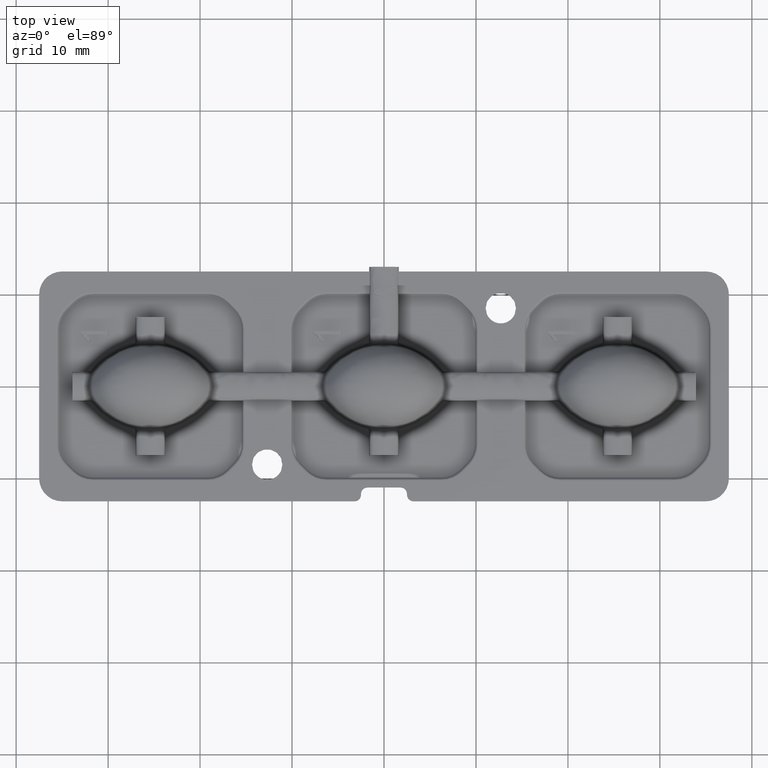
[diagram: clean part render]
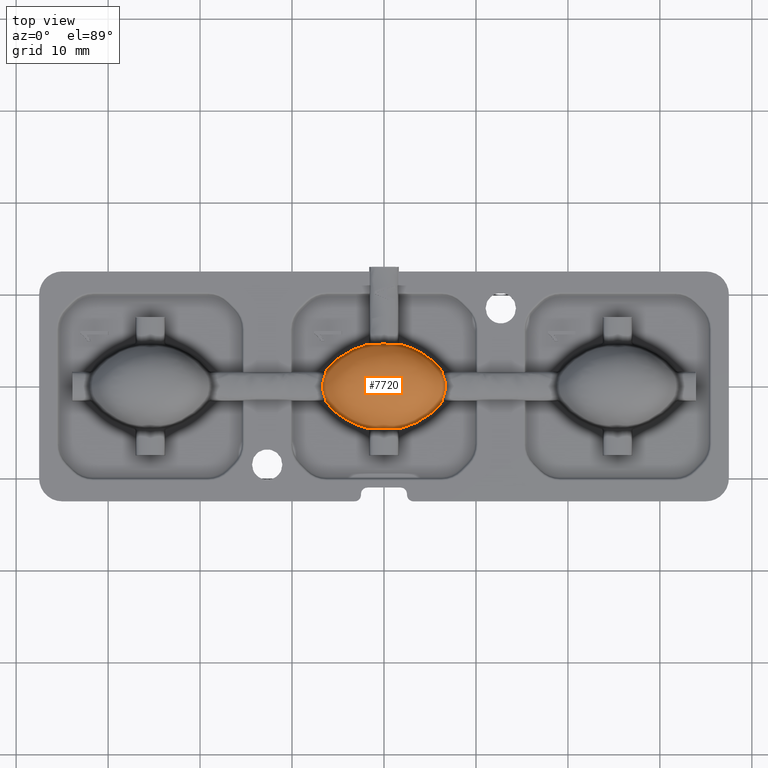
[diagram: same view with one face highlighted and labeled with its STEP entity id]
A machine part, top view. The second image highlights one B-rep face of the part: STEP entity #7720.
In plain terms, the highlighted face is a freeform B-spline surface patch.
Its self-contained STEP definition (entity closure, byte-faithful):
#48 = CARTESIAN_POINT ( 'NONE',  ( -4.290715966508043900, -2.774977043889248000, 4.899085278123263400 ) ) ;
#109 = CARTESIAN_POINT ( 'NONE',  ( -6.595367095708966500, -1.067414431001360200, 2.002142439754583100 ) ) ;
#160 = CARTESIAN_POINT ( 'NONE',  ( -7.149999999999996800, 0.3921826513172495000, 0.7000000000000000700 ) ) ;
#199 = CARTESIAN_POINT ( 'NONE',  ( 0.6654956143918615600, 4.572605465096015300, 2.121198574810695600 ) ) ;
#217 = CARTESIAN_POINT ( 'NONE',  ( 5.412768309494088800, 2.963205368882867200, 0.7000000000000000700 ) ) ;
#236 = EDGE_CURVE ( 'NONE', #14171, #12519, #14984, .T. ) ;
#238 = CARTESIAN_POINT ( 'NONE',  ( -6.660649341895565500, 0.3246350075704794700, 2.133466645938674400 ) ) ;
#255 = CARTESIAN_POINT ( 'NONE',  ( -1.688496123736301900, 4.530771309921590300, 1.638602403055297000 ) ) ;
#272 = CARTESIAN_POINT ( 'NONE',  ( 2.915339899021013500, 4.133131932776851000, 1.701016035214077700 ) ) ;
#332 = CARTESIAN_POINT ( 'NONE',  ( 0.5050017421716935800, 4.766775499048923900, 1.640737770873085300 ) ) ;
#386 = VERTEX_POINT ( 'NONE', #13800 ) ;
#395 = CARTESIAN_POINT ( 'NONE',  ( 6.938893903907228400E-015, 4.999999999999986700, 0.7000000000000000700 ) ) ;
#415 = CARTESIAN_POINT ( 'NONE',  ( 5.070618142720174900, 2.996358752434780100, 1.387135772169884000 ) ) ;
#523 = CARTESIAN_POINT ( 'NONE',  ( 1.749398461971673400, -4.576355337311180300, 1.417381862252350200 ) ) ;
#549 = CARTESIAN_POINT ( 'NONE',  ( 5.064352978633558600, -3.001296862853913600, 1.387149818517435600 ) ) ;
#564 = ORIENTED_EDGE ( 'NONE', *, *, #7376, .T. ) ;
#684 = CARTESIAN_POINT ( 'NONE',  ( 6.601493119740585100, -0.6427101006719259100, 2.099522563110465300 ) ) ;
#747 = CARTESIAN_POINT ( 'NONE',  ( 6.324719791588134600, 1.659400492682334200, 1.473931009564402300 ) ) ;
#828 = CARTESIAN_POINT ( 'NONE',  ( -2.206114765970292000, 4.468967724444484100, 1.386435487606687800 ) ) ;
#888 = CARTESIAN_POINT ( 'NONE',  ( -5.757316545885742300, 2.392121737182218300, 1.385093045938090400 ) ) ;
#909 = EDGE_CURVE ( 'NONE', #14121, #8118, #6334, .T. ) ;
#1059 = CARTESIAN_POINT ( 'NONE',  ( -1.586637196051814000, -4.517661033080703900, 1.771178540185564400 ) ) ;
#1117 = CARTESIAN_POINT ( 'NONE',  ( 0.8293503684184273500, -4.561129281262794600, 2.095933404689285700 ) ) ;
#1147 = CARTESIAN_POINT ( 'NONE',  ( -2.642466879972825000, -4.321490308572074400, 1.386978509085057700 ) ) ;
#1245 = CARTESIAN_POINT ( 'NONE',  ( 6.938893903907228400E-015, -5.000000000000013300, 0.7000000000000000700 ) ) ;
#1303 = CARTESIAN_POINT ( 'NONE',  ( -0.5050017463929003000, -4.766775504404596300, 1.640737745379796700 ) ) ;
#1330 = ORIENTED_EDGE ( 'NONE', *, *, #9439, .T. ) ;
#1357 = CARTESIAN_POINT ( 'NONE',  ( -2.915339923262014700, -4.133131935653496600, 1.701016005668017700 ) ) ;
#1409 = CARTESIAN_POINT ( 'NONE',  ( -5.412768346637751200, -2.963205337058307400, 0.7000000000000000700 ) ) ;
#1468 = CARTESIAN_POINT ( 'NONE',  ( 7.150000000000010100, -0.3921826448971799700, 0.7000000000000000700 ) ) ;
#1523 = CARTESIAN_POINT ( 'NONE',  ( 6.595367088537584800, 1.067414437906764000, 2.002142442199470000 ) ) ;
#1562 = CARTESIAN_POINT ( 'NONE',  ( 0.1672719782673925400, 4.591699679565089700, 2.161825673963400500 ) ) ;
#1580 = CARTESIAN_POINT ( 'NONE',  ( 4.290715954133231600, 2.774976996087564100, 4.899085324289795400 ) ) ;
#1599 = CARTESIAN_POINT ( 'NONE',  ( -6.677739851114551200, -0.1614347077318900300, 2.141522451979025900 ) ) ;
#1622 = CARTESIAN_POINT ( 'NONE',  ( -1.738451389440558200, 4.562065726538076400, 1.479700766335215300 ) ) ;
#1640 = CARTESIAN_POINT ( 'NONE',  ( -2.269404213826237400, 4.055426538387129300, 3.443968881844440900 ) ) ;
#1668 = B_SPLINE_SURFACE_WITH_KNOTS ( 'NONE', 3, 3, ( 
 ( #6611, #17406, #1245, #10674, #2620, #12037 ),
 ( #3958, #13391, #5315, #14755, #6669, #16109 ),
 ( #8028, #17464, #9393, #1303, #10736, #2678 ),
 ( #12096, #4017, #13441, #5360, #14809, #6725 ),
 ( #16164, #8084, #17525, #9443, #1357, #10791 ),
 ( #2733, #12152, #4069, #13496, #5418, #14860 ),
 ( #6778, #16215, #8139, #48, #9504, #1409 ),
 ( #10840, #2788, #12204, #4126, #13554, #5474 ),
 ( #14916, #6825, #16270, #8194, #109, #9554 ),
 ( #1468, #10901, #2843, #12257, #4182, #13608 ),
 ( #5531, #14976, #6883, #16327, #8252, #160 ),
 ( #9612, #1523, #10957, #2901, #12309, #4233 ),
 ( #13667, #5589, #15035, #6943, #16389, #8306 ),
 ( #217, #9673, #1580, #11015, #2961, #12370 ),
 ( #4286, #13725, #5650, #15096, #7002, #16448 ),
 ( #8367, #272, #9733, #1640, #11074, #3015 ),
 ( #12424, #4343, #13781, #5707, #15150, #7058 ),
 ( #16508, #8436, #332, #9788, #1703, #11138 ),
 ( #3072, #12483, #4401, #13838, #5758, #15207 ),
 ( #7117, #16563, #8491, #395, #9848, #1760 ) ),
 .UNSPECIFIED., .F., .F., .F.,
 ( 4, 1, 1, 1, 1, 1, 1, 1, 2, 1, 1, 1, 1, 1, 1, 1, 4 ),
 ( 4, 2, 4 ),
 ( 0.0000000000000000000, 0.06249999917855408900, 0.1249999983571081800, 0.1874999975356623500, 0.2499999967142163500, 0.3124999958927705000, 0.3749999950713247000, 0.4374999942498787900, 0.4999999934284327700, 0.5624999942498786200, 0.6249999950713246400, 0.6874999958927704400, 0.7499999967142163500, 0.8124999975356623800, 0.8749999983571081800, 0.9374999991785539800, 1.000000000000000000 ),
 ( 0.0000000000000000000, 0.5000000000047545300, 1.000000000000000000 ),
 .UNSPECIFIED. ) ;
#1703 = CARTESIAN_POINT ( 'NONE',  ( -0.8476577983524379300, 4.846671131088753800, 1.133272044865876800 ) ) ;
#1711 = ORIENTED_EDGE ( 'NONE', *, *, #15299, .T. ) ;
#1715 = CARTESIAN_POINT ( 'NONE',  ( 1.738451414722012300, 4.562066050238321700, 1.479700853122717800 ) ) ;
#1760 = CARTESIAN_POINT ( 'NONE',  ( 6.938893903907228400E-015, 4.999999999999985800, 0.7000000000000000700 ) ) ;
#1781 = CARTESIAN_POINT ( 'NONE',  ( 3.906711559148894800, 3.751654608718248100, 1.388087966596569700 ) ) ;
#1894 = VERTEX_POINT ( 'NONE', #10417 ) ;
#1932 = CARTESIAN_POINT ( 'NONE',  ( 6.075217602667661000, -2.057375310218552100, 1.383816536486075500 ) ) ;
#1943 = VERTEX_POINT ( 'NONE', #7814 ) ;
#2031 = B_SPLINE_CURVE_WITH_KNOTS ( 'NONE', 3,
 ( #5549, #10976, #2924, #12335, #4253, #13686, #5609, #15055, #6964, #16410, #8330, #238, #9694, #1599, #11034, #2984, #12392, #4309, #13749, #5670, #15115, #7019, #16470, #8390 ),
 .UNSPECIFIED., .F., .F.,
 ( 4, 2, 2, 2, 2, 2, 2, 2, 2, 2, 2, 4 ),
 ( 0.0000000000000000000, 0.0002482781213541509500, 0.0004965562427083019100, 0.0007448343640624529200, 0.0009931124854166036000, 0.001489668728124904800, 0.001986224970833206300, 0.002482781213541507700, 0.002979337456249808600, 0.003475893698958110000, 0.003724171820312260000, 0.003972449941666410900 ),
 .UNSPECIFIED. ) ;
#2069 = CARTESIAN_POINT ( 'NONE',  ( 6.677566692147401300, -0.1639384753831527000, 2.141438152756980800 ) ) ;
#2270 = EDGE_CURVE ( 'NONE', #8374, #2982, #16523, .T. ) ;
#2273 = CARTESIAN_POINT ( 'NONE',  ( -6.345702945581822800, 1.675461077293303400, 1.381988100919692600 ) ) ;
#2363 = B_SPLINE_CURVE_WITH_KNOTS ( 'NONE', 3,
 ( #8725, #12714, #12773, #4696, #14139, #6057, #15509, #7416, #16862, #8787, #684, #10149, #2069, #11494, #3423, #12840, #4760, #14195, #6121, #15563, #7479, #16926, #8847, #747 ),
 .UNSPECIFIED., .F., .F.,
 ( 4, 2, 2, 2, 2, 2, 2, 2, 2, 2, 2, 4 ),
 ( 2.168404344971005500E-019, 0.0002482781215115516900, 0.0004965562430231031500, 0.0007448343645346546200, 0.0009931124860462058800, 0.001489668729069308400, 0.001986224972092410900, 0.002482781215115513800, 0.002979337458138616300, 0.003475893701161718400, 0.003724171822673270300, 0.003972449944184821800 ),
 .UNSPECIFIED. ) ;
#2438 = CARTESIAN_POINT ( 'NONE',  ( -1.380317367090848800, -4.520954906882182400, 1.916279658280521500 ) ) ;
#2499 = CARTESIAN_POINT ( 'NONE',  ( 1.312501726765939600, -4.522827845783491600, 1.960030078668636900 ) ) ;
#2528 = CARTESIAN_POINT ( 'NONE',  ( -1.754870300529128000, -4.583453939595566200, 1.386211587476608300 ) ) ;
#2620 = CARTESIAN_POINT ( 'NONE',  ( 6.938893903907228400E-015, -5.000000000000016000, 0.7000000000000000700 ) ) ;
#2636 = EDGE_CURVE ( 'NONE', #1943, #1894, #7104, .T. ) ;
#2663 = B_SPLINE_CURVE_WITH_KNOTS ( 'NONE', 3,
 ( #5162, #3827, #6519, #15958, #7874, #17311, #9239, #1147, #10589, #2528 ),
 .UNSPECIFIED., .F., .F.,
 ( 4, 2, 2, 2, 4 ),
 ( 0.0000000000000000000, 0.001377293916187223200, 0.002754587832374446500, 0.004131881748561669700, 0.005509175664748892900 ),
 .UNSPECIFIED. ) ;
#2678 = CARTESIAN_POINT ( 'NONE',  ( -1.175940857386897900, -4.926567330182454200, 0.7000000000000000700 ) ) ;
#2733 = CARTESIAN_POINT ( 'NONE',  ( 4.454077388792550900, -3.649670767670162100, 0.7000000000000000700 ) ) ;
#2748 = CARTESIAN_POINT ( 'NONE',  ( -1.749398484904301400, -4.576355636843497400, 1.417381951649589800 ) ) ;
#2788 = CARTESIAN_POINT ( 'NONE',  ( 5.908642433946578600, -2.026134054206714600, 2.017648604162138400 ) ) ;
#2835 = EDGE_CURVE ( 'NONE', #8118, #13970, #12098, .T. ) ;
#2843 = CARTESIAN_POINT ( 'NONE',  ( 6.000000000000151000, -0.3230455274347310300, 5.650000000000003000 ) ) ;
#2885 = CARTESIAN_POINT ( 'NONE',  ( 1.738451414722012300, 4.562066050238321700, 1.479700853122717800 ) ) ;
#2901 = CARTESIAN_POINT ( 'NONE',  ( -5.814056590464120200, 0.9696422600203122900, 5.604288999817969200 ) ) ;
#2924 = CARTESIAN_POINT ( 'NONE',  ( -6.302099736603016000, 1.609954990850395000, 1.631569473363116100 ) ) ;
#2944 = CARTESIAN_POINT ( 'NONE',  ( -0.3328915831219460600, 4.587972969286781200, 2.154408507590299700 ) ) ;
#2953 = EDGE_LOOP ( 'NONE', ( #7128, #17211, #13362, #1711, #16933, #8738, #3581, #564, #15422, #7190, #10699, #3056, #15181, #9050, #8757, #1330 ) ) ;
#2961 = CARTESIAN_POINT ( 'NONE',  ( -5.009808393361514500, 2.869086854958898100, 1.983412169577177400 ) ) ;
#2963 = VERTEX_POINT ( 'NONE', #15609 ) ;
#2982 = VERTEX_POINT ( 'NONE', #15670 ) ;
#2984 = CARTESIAN_POINT ( 'NONE',  ( -6.601183197597735300, -0.6439355695509657600, 2.099331803250934900 ) ) ;
#3015 = CARTESIAN_POINT ( 'NONE',  ( -3.417592161212505500, 4.210832503156862700, 0.7000000000000000700 ) ) ;
#3056 = ORIENTED_EDGE ( 'NONE', *, *, #4035, .T. ) ;
#3072 = CARTESIAN_POINT ( 'NONE',  ( 0.3921832722371052000, 4.999999999999985800, 0.7000000000000000700 ) ) ;
#3145 = CARTESIAN_POINT ( 'NONE',  ( 2.642077581170088500, 4.321629556546452200, 1.386978060414577600 ) ) ;
#3423 = CARTESIAN_POINT ( 'NONE',  ( 6.660399695964081900, 0.3264139145669682200, 2.133336206791671200 ) ) ;
#3581 = ORIENTED_EDGE ( 'NONE', *, *, #14844, .T. ) ;
#3801 = CARTESIAN_POINT ( 'NONE',  ( -1.148902206757488600, -4.536667702820745200, 2.011740824346773600 ) ) ;
#3827 = CARTESIAN_POINT ( 'NONE',  ( -6.077118311880775900, -2.054691798862678700, 1.383803726237009800 ) ) ;
#3852 = CARTESIAN_POINT ( 'NONE',  ( 1.587152742492572000, -4.517692909167670300, 1.770640776568880100 ) ) ;
#3910 = CARTESIAN_POINT ( 'NONE',  ( -1.738451415059374200, -4.562066050630363600, 1.479700853402380100 ) ) ;
#3958 = CARTESIAN_POINT ( 'NONE',  ( 0.3921845385867414600, -5.000000000000014200, 0.7000000000000000700 ) ) ;
#4017 = CARTESIAN_POINT ( 'NONE',  ( 1.849298649806027800, -4.553376177656558900, 1.455398824371915800 ) ) ;
#4035 = EDGE_CURVE ( 'NONE', #12519, #13488, #6885, .T. ) ;
#4069 = CARTESIAN_POINT ( 'NONE',  ( 3.293024154092959200, -3.497055727557050600, 4.242165697368048600 ) ) ;
#4084 = CARTESIAN_POINT ( 'NONE',  ( -1.754870300529128000, -4.583453939595566200, 1.386211587476608300 ) ) ;
#4108 = CARTESIAN_POINT ( 'NONE',  ( -6.324719795346552200, -1.659400493425712700, 1.473931010381109900 ) ) ;
#4126 = CARTESIAN_POINT ( 'NONE',  ( -5.166293178494190600, -1.912187159785373200, 5.357075019456004000 ) ) ;
#4182 = CARTESIAN_POINT ( 'NONE',  ( -6.804907939863304600, -0.3576147138482683700, 1.987901101718763800 ) ) ;
#4233 = CARTESIAN_POINT ( 'NONE',  ( -6.931233589659142600, 1.165180267201937800, 0.7000000000000000700 ) ) ;
#4253 = CARTESIAN_POINT ( 'NONE',  ( -6.338123488335722500, 1.448427657819247000, 1.813903413639549300 ) ) ;
#4272 = CARTESIAN_POINT ( 'NONE',  ( -0.8291987365649280400, 4.561138992370497500, 2.095927662378463300 ) ) ;
#4286 = CARTESIAN_POINT ( 'NONE',  ( 4.454067494978477100, 3.649676869669339100, 0.7000000000000000700 ) ) ;
#4309 = CARTESIAN_POINT ( 'NONE',  ( -6.462264643736524800, -1.101477732117489300, 1.994918393709080200 ) ) ;
#4343 = CARTESIAN_POINT ( 'NONE',  ( 1.849295177652598300, 4.553377313537746200, 1.455398847091986700 ) ) ;
#4401 = CARTESIAN_POINT ( 'NONE',  ( 0.1307279669658899200, 4.916389662975516800, 1.012038025813272200 ) ) ;
#4472 = CARTESIAN_POINT ( 'NONE',  ( 1.754870300227921100, 4.583453939311494800, 1.386211587170034700 ) ) ;
#4533 = CARTESIAN_POINT ( 'NONE',  ( 1.743925043582968300, -4.569231831064753300, 1.448546238801339000 ) ) ;
#4556 = CARTESIAN_POINT ( 'NONE',  ( 2.644847592841759200, -4.320437298281683900, 1.386980503185325300 ) ) ;
#4672 = B_SPLINE_CURVE_WITH_KNOTS ( 'NONE', 3,
 ( #15337, #4533, #523, #9977 ),
 .UNSPECIFIED., .F., .F.,
 ( 4, 4 ),
 ( 2.168404344971003300E-019, 9.729988098423549200E-005 ),
 .UNSPECIFIED. ) ;
#4696 = CARTESIAN_POINT ( 'NONE',  ( 6.318967371181744700, -1.510071045649069100, 1.761949550967111500 ) ) ;
#4760 = CARTESIAN_POINT ( 'NONE',  ( 6.559263689923009000, 0.7987837257306311700, 2.073934257779348500 ) ) ;
#5131 = CARTESIAN_POINT ( 'NONE',  ( -0.8291987247722172300, -4.561139303097640200, 2.095927706746852200 ) ) ;
#5162 = CARTESIAN_POINT ( 'NONE',  ( -6.345703000468355400, -1.675461104364845700, 1.381988121750221500 ) ) ;
#5186 = CARTESIAN_POINT ( 'NONE',  ( 6.338871983398676400, -1.670096936768726600, 1.412670721576547900 ) ) ;
#5194 = CARTESIAN_POINT ( 'NONE',  ( 1.724180006640232900, -4.543381641072210500, 1.560929543364413300 ) ) ;
#5315 = CARTESIAN_POINT ( 'NONE',  ( 0.1307279699803709500, -4.916389664955762100, 1.012038018422997800 ) ) ;
#5360 = CARTESIAN_POINT ( 'NONE',  ( -1.310221700631983400, -4.465431260519583400, 2.563217634162131100 ) ) ;
#5418 = CARTESIAN_POINT ( 'NONE',  ( -3.988499814836759900, -3.573366774920474100, 1.877533399544251600 ) ) ;
#5474 = CARTESIAN_POINT ( 'NONE',  ( -6.259423091654059400, -2.140089668860918800, 0.7000000000000000700 ) ) ;
#5531 = CARTESIAN_POINT ( 'NONE',  ( 7.150000000000010100, 0.3921851659357171700, 0.7000000000000000700 ) ) ;
#5549 = CARTESIAN_POINT ( 'NONE',  ( -6.324719732420456700, 1.659400463049235800, 1.473930989643824200 ) ) ;
#5570 = CARTESIAN_POINT ( 'NONE',  ( 1.587152765001245400, 4.517693317269831300, 1.770640862368619600 ) ) ;
#5589 = CARTESIAN_POINT ( 'NONE',  ( 5.908639096908585100, 2.026137873414095600, 2.017648616005915500 ) ) ;
#5609 = CARTESIAN_POINT ( 'NONE',  ( -6.409359362655637300, 1.244734984034134200, 1.934199347709004900 ) ) ;
#5629 = CARTESIAN_POINT ( 'NONE',  ( -1.148902208751046300, 4.536667318121373200, 2.011740758866500400 ) ) ;
#5650 = CARTESIAN_POINT ( 'NONE',  ( 3.293024140508655300, 3.497057296277962900, 4.242165757131521000 ) ) ;
#5670 = CARTESIAN_POINT ( 'NONE',  ( -6.338151775124868200, -1.448315007964366500, 1.814037628682889200 ) ) ;
#5707 = CARTESIAN_POINT ( 'NONE',  ( -1.310221690755869500, 4.465430678918768800, 2.563217679602273400 ) ) ;
#5758 = CARTESIAN_POINT ( 'NONE',  ( -0.2614562482514716200, 4.958194831487687400, 0.8560190129068834300 ) ) ;
#5826 = FACE_OUTER_BOUND ( 'NONE', #2953, .T. ) ;
#5917 = CARTESIAN_POINT ( 'NONE',  ( 2.205864436854938500, -4.469031236804272400, 1.386435363816934700 ) ) ;
#5940 = CARTESIAN_POINT ( 'NONE',  ( -1.749398461658209000, 4.576355336986128300, 1.417381861953670900 ) ) ;
#6057 = CARTESIAN_POINT ( 'NONE',  ( 6.383329396834303900, -1.315716464490131100, 1.900043199191513900 ) ) ;
#6121 = CARTESIAN_POINT ( 'NONE',  ( 6.406383720353061600, 1.248095659784046200, 1.943811556841836200 ) ) ;
#6263 = CARTESIAN_POINT ( 'NONE',  ( -1.754870278480830800, 4.583453652271934700, 1.386211496545184600 ) ) ;
#6272 = EDGE_CURVE ( 'NONE', #6898, #9623, #12187, .T. ) ;
#6334 = B_SPLINE_CURVE_WITH_KNOTS ( 'NONE', 3,
 ( #15367, #5917, #4556, #7280, #16724, #8643, #549, #10004, #1932, #11361 ),
 .UNSPECIFIED., .F., .F.,
 ( 4, 2, 2, 2, 4 ),
 ( 2.168404344970989600E-019, 0.001395722519793629200, 0.002791445039587258000, 0.004187167559380887400, 0.005582890079174516000 ),
 .UNSPECIFIED. ) ;
#6491 = CARTESIAN_POINT ( 'NONE',  ( -0.3328915589622045700, -4.587973102154049500, 2.154408521864056100 ) ) ;
#6519 = CARTESIAN_POINT ( 'NONE',  ( -5.761318115622523300, -2.387974154354434400, 1.385076275234622200 ) ) ;
#6543 = CARTESIAN_POINT ( 'NONE',  ( 6.331882626943536400, -1.664742986451234200, 1.443320376186805000 ) ) ;
#6611 = CARTESIAN_POINT ( 'NONE',  ( 6.938893903907228400E-015, -5.000000000000014200, 0.7000000000000000700 ) ) ;
#6669 = CARTESIAN_POINT ( 'NONE',  ( -0.2614556256273249400, -4.958194832477824200, 0.8560190092117461200 ) ) ;
#6725 = CARTESIAN_POINT ( 'NONE',  ( -2.320114774518676500, -4.641323557222746000, 0.7000000000000000700 ) ) ;
#6778 = CARTESIAN_POINT ( 'NONE',  ( 5.412777452429483400, -2.963197764266190000, 0.7000000000000000700 ) ) ;
#6825 = CARTESIAN_POINT ( 'NONE',  ( 6.595368413975618800, -1.067411866655700900, 2.002142439754756300 ) ) ;
#6883 = CARTESIAN_POINT ( 'NONE',  ( 6.000000000000154500, 0.3230455359263680300, 5.650000000000003000 ) ) ;
#6885 = B_SPLINE_CURVE_WITH_KNOTS ( 'NONE', 3,
 ( #7790, #15866, #9150, #1059, #10505, #2438, #11857, #3801, #13216, #5131, #14569, #6491, #15928, #7845, #17285, #9213, #1117, #10564, #2499, #11913, #3852, #13275, #5194, #14630 ),
 .UNSPECIFIED., .F., .F.,
 ( 4, 2, 2, 2, 2, 2, 2, 2, 2, 2, 2, 4 ),
 ( 2.168404344971006000E-019, 0.0002509265716322071800, 0.0005018531432644141300, 0.0007527797148966213600, 0.001003706286528828900, 0.001505559429793244000, 0.002007412573057659600, 0.002509265716322075100, 0.003011118859586490200, 0.003512972002850905800, 0.003763898574483113300, 0.004014825146115321700 ),
 .UNSPECIFIED. ) ;
#6898 = VERTEX_POINT ( 'NONE', #4108 ) ;
#6924 = CARTESIAN_POINT ( 'NONE',  ( 1.312501745607979100, 4.522828259828373600, 1.960030146080651300 ) ) ;
#6943 = CARTESIAN_POINT ( 'NONE',  ( -5.166293169391090100, 1.912185204161444700, 5.357075043143558100 ) ) ;
#6964 = CARTESIAN_POINT ( 'NONE',  ( -6.486353904546847500, 1.026261860865856700, 2.014523281056187300 ) ) ;
#6983 = CARTESIAN_POINT ( 'NONE',  ( -1.380317360483443800, 4.520954492253587800, 1.916279577732093800 ) ) ;
#7002 = CARTESIAN_POINT ( 'NONE',  ( -3.988504714198735100, 3.573363555666671400, 1.877533429425986700 ) ) ;
#7019 = CARTESIAN_POINT ( 'NONE',  ( -6.302091227613257900, -1.610163779182245400, 1.631210943317695800 ) ) ;
#7058 = CARTESIAN_POINT ( 'NONE',  ( -2.320121649692704000, 4.641321485730404800, 0.7000000000000000700 ) ) ;
#7104 = B_SPLINE_CURVE_WITH_KNOTS ( 'NONE', 3,
 ( #8444, #16516, #9799, #1715 ),
 .UNSPECIFIED., .F., .F.,
 ( 4, 4 ),
 ( 0.0000000000000000000, 9.729986869792832000E-005 ),
 .UNSPECIFIED. ) ;
#7117 = CARTESIAN_POINT ( 'NONE',  ( 6.938893903907228400E-015, 4.999999999999985800, 0.7000000000000000700 ) ) ;
#7128 = ORIENTED_EDGE ( 'NONE', *, *, #12835, .T. ) ;
#7136 = CARTESIAN_POINT ( 'NONE',  ( 6.345702997097277800, 1.675461103699208000, 1.381988120870357300 ) ) ;
#7190 = ORIENTED_EDGE ( 'NONE', *, *, #13615, .T. ) ;
#7280 = CARTESIAN_POINT ( 'NONE',  ( 3.490336521320848800, -3.964138243068813200, 1.387783367622757600 ) ) ;
#7376 = EDGE_CURVE ( 'NONE', #14462, #6898, #2031, .T. ) ;
#7397 = EDGE_CURVE ( 'NONE', #386, #1943, #10140, .T. ) ;
#7416 = CARTESIAN_POINT ( 'NONE',  ( 6.460773294465490800, -1.100136670625188100, 1.991411042803486100 ) ) ;
#7479 = CARTESIAN_POINT ( 'NONE',  ( 6.318901390320876400, 1.510304837139129400, 1.761730130761670200 ) ) ;
#7621 = CARTESIAN_POINT ( 'NONE',  ( -3.897249220643103800, 3.756694369352557000, 1.388082781812401100 ) ) ;
#7720 = ADVANCED_FACE ( 'NONE', ( #5826 ), #1668, .T. ) ;
#7790 = CARTESIAN_POINT ( 'NONE',  ( -1.738451415059374200, -4.562066050630363600, 1.479700853402380100 ) ) ;
#7814 = CARTESIAN_POINT ( 'NONE',  ( 1.754870300227921100, 4.583453939311494800, 1.386211587170034700 ) ) ;
#7845 = CARTESIAN_POINT ( 'NONE',  ( 0.1672720029874079100, -4.591699612331195700, 2.161825665978248900 ) ) ;
#7874 = CARTESIAN_POINT ( 'NONE',  ( -4.693759024307901500, -3.269448110217584100, 1.387755267887111700 ) ) ;
#7933 = CARTESIAN_POINT ( 'NONE',  ( -6.331882623306342800, 1.664742985731141500, 1.443320375360251000 ) ) ;
#8028 = CARTESIAN_POINT ( 'NONE',  ( 1.175944621006792800, -4.926566854217751900, 0.7000000000000000700 ) ) ;
#8084 = CARTESIAN_POINT ( 'NONE',  ( 2.915344442980902300, -4.133129720406080800, 1.701016005669914400 ) ) ;
#8118 = VERTEX_POINT ( 'NONE', #9774 ) ;
#8139 = CARTESIAN_POINT ( 'NONE',  ( 4.290715966514466300, -2.774975095891337100, 4.899085278125788500 ) ) ;
#8194 = CARTESIAN_POINT ( 'NONE',  ( -5.814056594049821700, -0.9696435607528022200, 5.604288994928541700 ) ) ;
#8252 = CARTESIAN_POINT ( 'NONE',  ( -6.804907939863304600, 0.3576147232485929500, 1.987901101718763300 ) ) ;
#8262 = CARTESIAN_POINT ( 'NONE',  ( -6.331882683530762900, -1.664743015027032400, 1.443320396112867600 ) ) ;
#8289 = CARTESIAN_POINT ( 'NONE',  ( 0.8293503616605343300, 4.561129594298827300, 2.095933449345427600 ) ) ;
#8306 = CARTESIAN_POINT ( 'NONE',  ( -6.259429702008323400, 2.140081822437629900, 0.7000000000000000700 ) ) ;
#8330 = CARTESIAN_POINT ( 'NONE',  ( -6.601493119259215400, 0.6427101012629294900, 2.099522563021405400 ) ) ;
#8353 = CARTESIAN_POINT ( 'NONE',  ( -1.586637180153879400, 4.517660624658632600, 1.771178445706346900 ) ) ;
#8367 = CARTESIAN_POINT ( 'NONE',  ( 3.417583121789961700, 4.210836611845751400, 0.7000000000000000700 ) ) ;
#8372 = B_SPLINE_CURVE_WITH_KNOTS ( 'NONE', 3,
 ( #9964, #14009, #16734, #8655 ),
 .UNSPECIFIED., .F., .F.,
 ( 4, 4 ),
 ( 2.168404344971008600E-019, 9.566469004329565400E-005 ),
 .UNSPECIFIED. ) ;
#8374 = VERTEX_POINT ( 'NONE', #11719 ) ;
#8390 = CARTESIAN_POINT ( 'NONE',  ( -6.324719795346552200, -1.659400493425712700, 1.473931010381109900 ) ) ;
#8436 = CARTESIAN_POINT ( 'NONE',  ( 0.8476559165485758600, 4.846671396010408200, 1.133272044867122500 ) ) ;
#8444 = CARTESIAN_POINT ( 'NONE',  ( 1.754870300227921100, 4.583453939311494800, 1.386211587170034700 ) ) ;
#8491 = CARTESIAN_POINT ( 'NONE',  ( 6.938893903907228400E-015, 4.999999999999985800, 0.7000000000000000700 ) ) ;
#8510 = CARTESIAN_POINT ( 'NONE',  ( 5.761510529860504300, 2.387772149810143000, 1.385075445313019600 ) ) ;
#8643 = CARTESIAN_POINT ( 'NONE',  ( 4.684161365441044100, -3.275988999345449000, 1.387767146356562000 ) ) ;
#8655 = CARTESIAN_POINT ( 'NONE',  ( 6.345702997097277800, 1.675461103699208000, 1.381988120870357300 ) ) ;
#8686 = B_SPLINE_CURVE_WITH_KNOTS ( 'NONE', 3,
 ( #2885, #14845, #13650, #5570, #15018, #6924, #16374, #8289, #199, #9651, #1562, #10998, #2944, #12352, #4272, #13707, #5629, #15076, #6983, #16431, #8353, #255, #9716, #1622 ),
 .UNSPECIFIED., .F., .F.,
 ( 4, 2, 2, 2, 2, 2, 2, 2, 2, 2, 2, 4 ),
 ( 0.0000000000000000000, 0.0002517636026972078000, 0.0005035272053944155900, 0.001007054410788831000, 0.001510581616183246100, 0.002014108821577661500, 0.002517636026972077100, 0.003021163232366492300, 0.003272926835063700700, 0.003524690437760908300, 0.003776454040458116300, 0.004028217643155323900 ),
 .UNSPECIFIED. ) ;
#8725 = CARTESIAN_POINT ( 'NONE',  ( 6.324719736182673000, -1.659400463795840800, 1.473930990442896500 ) ) ;
#8738 = ORIENTED_EDGE ( 'NONE', *, *, #2270, .T. ) ;
#8757 = ORIENTED_EDGE ( 'NONE', *, *, #2835, .T. ) ;
#8787 = CARTESIAN_POINT ( 'NONE',  ( 6.558774090980813700, -0.8003978063005330300, 2.073571626264195400 ) ) ;
#8847 = CARTESIAN_POINT ( 'NONE',  ( 6.306008465528679900, 1.645444437548970100, 1.553893890491682100 ) ) ;
#8995 = CARTESIAN_POINT ( 'NONE',  ( -5.063269792980157100, 3.002164927730738100, 1.387152368723665800 ) ) ;
#9050 = ORIENTED_EDGE ( 'NONE', *, *, #909, .T. ) ;
#9150 = CARTESIAN_POINT ( 'NONE',  ( -1.688496147083389200, -4.530771687257488800, 1.638602499764337800 ) ) ;
#9213 = CARTESIAN_POINT ( 'NONE',  ( 0.6654956283937196700, -4.572605204070090900, 2.121198540567740900 ) ) ;
#9239 = CARTESIAN_POINT ( 'NONE',  ( -3.494416168084408400, -3.962369990635998800, 1.387787199301473700 ) ) ;
#9373 = CARTESIAN_POINT ( 'NONE',  ( -6.324719732420456700, 1.659400463049235800, 1.473930989643824200 ) ) ;
#9393 = CARTESIAN_POINT ( 'NONE',  ( 0.5050017464049982900, -4.766775371943130500, 1.640737745382288200 ) ) ;
#9410 = CARTESIAN_POINT ( 'NONE',  ( -1.743925067692342800, -4.569232142818632900, 1.448546326918016800 ) ) ;
#9439 = EDGE_CURVE ( 'NONE', #13970, #13681, #2363, .T. ) ;
#9443 = CARTESIAN_POINT ( 'NONE',  ( -2.269404225950514500, -4.055427670052862900, 3.443968822756115200 ) ) ;
#9504 = CARTESIAN_POINT ( 'NONE',  ( -5.009803865228136000, -2.869090757604875600, 1.983412146495174800 ) ) ;
#9554 = CARTESIAN_POINT ( 'NONE',  ( -6.931230963882970100, -1.165186521152857800, 0.7000000000000000700 ) ) ;
#9612 = CARTESIAN_POINT ( 'NONE',  ( 6.931230953125828300, 1.165186549756665800, 0.7000000000000000700 ) ) ;
#9622 = CARTESIAN_POINT ( 'NONE',  ( -6.324719795346552200, -1.659400493425712700, 1.473931010381109900 ) ) ;
#9623 = VERTEX_POINT ( 'NONE', #10664 ) ;
#9651 = CARTESIAN_POINT ( 'NONE',  ( 0.3339466195501779000, 4.587944723594660900, 2.154356000754130000 ) ) ;
#9673 = CARTESIAN_POINT ( 'NONE',  ( 5.009803840468841000, 2.869090750953133400, 1.983412169578440100 ) ) ;
#9694 = CARTESIAN_POINT ( 'NONE',  ( -6.677566691952213400, 0.1639384764110074500, 2.141438152740168900 ) ) ;
#9716 = CARTESIAN_POINT ( 'NONE',  ( -1.724127527280747300, 4.543312935126892600, 1.561228239048308500 ) ) ;
#9733 = CARTESIAN_POINT ( 'NONE',  ( 2.269404213841298200, 4.055427646010178600, 3.443968881848236100 ) ) ;
#9774 = CARTESIAN_POINT ( 'NONE',  ( 6.345702948952838300, -1.675461077959123500, 1.381988101799248100 ) ) ;
#9788 = CARTESIAN_POINT ( 'NONE',  ( -0.5050017421595991400, 4.766775366588477800, 1.640737770870593700 ) ) ;
#9799 = CARTESIAN_POINT ( 'NONE',  ( 1.743925067367032300, 4.569232142460395000, 1.448546326628920700 ) ) ;
#9848 = CARTESIAN_POINT ( 'NONE',  ( 6.938893903907228400E-015, 4.999999999999987600, 0.7000000000000000700 ) ) ;
#9869 = CARTESIAN_POINT ( 'NONE',  ( 4.694258903499315800, 3.269159219371377700, 1.387755262317718300 ) ) ;
#9964 = CARTESIAN_POINT ( 'NONE',  ( 6.324719791588134600, 1.659400492682334200, 1.473931009564402300 ) ) ;
#9977 = CARTESIAN_POINT ( 'NONE',  ( 1.754870278782207700, -4.583453652559039200, 1.386211496852422200 ) ) ;
#9984 = B_SPLINE_CURVE_WITH_KNOTS ( 'NONE', 3,
 ( #11946, #17314, #7933, #17372 ),
 .UNSPECIFIED., .F., .F.,
 ( 4, 4 ),
 ( 0.0000000000000000000, 9.566469229245456100E-005 ),
 .UNSPECIFIED. ) ;
#10004 = CARTESIAN_POINT ( 'NONE',  ( 5.757706387375919600, -2.391694898424497200, 1.385091227522260700 ) ) ;
#10140 = B_SPLINE_CURVE_WITH_KNOTS ( 'NONE', 3,
 ( #7136, #15228, #8510, #415, #9869, #1781, #11215, #3145, #12554, #4472 ),
 .UNSPECIFIED., .F., .F.,
 ( 4, 2, 2, 2, 4 ),
 ( 0.0000000000000000000, 0.001376938843790288200, 0.002753877687580576300, 0.004130816531370864700, 0.005507755375161152600 ),
 .UNSPECIFIED. ) ;
#10149 = CARTESIAN_POINT ( 'NONE',  ( 6.660649342005164900, -0.3246350065792672500, 2.133466645951068900 ) ) ;
#10351 = CARTESIAN_POINT ( 'NONE',  ( -6.075077762090769400, 2.057572750786465800, 1.383817480514093300 ) ) ;
#10417 = CARTESIAN_POINT ( 'NONE',  ( 1.738451414722012300, 4.562066050238321700, 1.479700853122717800 ) ) ;
#10505 = CARTESIAN_POINT ( 'NONE',  ( -1.521128589060684000, -4.516875440718981100, 1.826368516420833000 ) ) ;
#10564 = CARTESIAN_POINT ( 'NONE',  ( 1.151147256111742400, -4.536709132209379500, 2.015149192464027500 ) ) ;
#10589 = CARTESIAN_POINT ( 'NONE',  ( -2.203526122816787500, -4.469624839041641100, 1.386434308159839100 ) ) ;
#10664 = CARTESIAN_POINT ( 'NONE',  ( -6.345703000468355400, -1.675461104364845700, 1.381988121750221500 ) ) ;
#10674 = CARTESIAN_POINT ( 'NONE',  ( 6.938893903907228400E-015, -5.000000000000015100, 0.7000000000000000700 ) ) ;
#10699 = ORIENTED_EDGE ( 'NONE', *, *, #236, .T. ) ;
#10736 = CARTESIAN_POINT ( 'NONE',  ( -0.8476559250091206800, -4.846671397617307700, 1.133272032120478600 ) ) ;
#10774 = EDGE_CURVE ( 'NONE', #2963, #8374, #11525, .T. ) ;
#10791 = CARTESIAN_POINT ( 'NONE',  ( -3.417583158162696800, -4.210836594771645700, 0.7000000000000000700 ) ) ;
#10815 = CARTESIAN_POINT ( 'NONE',  ( 6.324719791588134600, 1.659400492682334200, 1.473931009564402300 ) ) ;
#10840 = CARTESIAN_POINT ( 'NONE',  ( 6.259429729317631100, -2.140081791582773900, 0.7000000000000000700 ) ) ;
#10901 = CARTESIAN_POINT ( 'NONE',  ( 6.804907939863314300, -0.3576147138481684000, 1.987901101718763800 ) ) ;
#10957 = CARTESIAN_POINT ( 'NONE',  ( 5.814056590464342200, 0.9696435421923981200, 5.604288999818318300 ) ) ;
#10968 = CARTESIAN_POINT ( 'NONE',  ( -6.345703000468355400, -1.675461104364845700, 1.381988121750221500 ) ) ;
#10976 = CARTESIAN_POINT ( 'NONE',  ( -6.306024317594007800, 1.645456277754627800, 1.553825845120570200 ) ) ;
#10998 = CARTESIAN_POINT ( 'NONE',  ( -0.1663311183736107500, 4.591712588364527100, 2.161854792708054700 ) ) ;
#11015 = CARTESIAN_POINT ( 'NONE',  ( -4.290715954126812700, 2.774975048090892600, 4.899085324287270300 ) ) ;
#11034 = CARTESIAN_POINT ( 'NONE',  ( -6.660399696057536900, -0.3264139136561089400, 2.133336206792944900 ) ) ;
#11074 = CARTESIAN_POINT ( 'NONE',  ( -2.915344418724780800, 4.133129717530016100, 1.701016035212179900 ) ) ;
#11138 = CARTESIAN_POINT ( 'NONE',  ( -1.175944608306837200, 4.926566856238110000, 0.7000000000000000700 ) ) ;
#11215 = CARTESIAN_POINT ( 'NONE',  ( 3.493951376453445300, 3.962590735830066300, 1.387786835239334800 ) ) ;
#11361 = CARTESIAN_POINT ( 'NONE',  ( 6.345702948952838300, -1.675461077959123500, 1.381988101799248100 ) ) ;
#11409 = CARTESIAN_POINT ( 'NONE',  ( 1.738451389778097100, -4.562065726933386000, 1.479700766615580800 ) ) ;
#11494 = CARTESIAN_POINT ( 'NONE',  ( 6.677739850918619900, 0.1614347085614039100, 2.141522451961040700 ) ) ;
#11525 = B_SPLINE_CURVE_WITH_KNOTS ( 'NONE', 3,
 ( #16690, #12664, #5940, #15391 ),
 .UNSPECIFIED., .F., .F.,
 ( 4, 4 ),
 ( 0.0000000000000000000, 9.729988103994311400E-005 ),
 .UNSPECIFIED. ) ;
#11636 = CARTESIAN_POINT ( 'NONE',  ( -2.644232384379552800, 4.320645245463815300, 1.386979756931985100 ) ) ;
#11719 = CARTESIAN_POINT ( 'NONE',  ( -1.754870278480830800, 4.583453652271934700, 1.386211496545184600 ) ) ;
#11857 = CARTESIAN_POINT ( 'NONE',  ( -1.303631259200142400, -4.525751481163199600, 1.952326584976935300 ) ) ;
#11913 = CARTESIAN_POINT ( 'NONE',  ( 1.522577992153278000, -4.516879606120658000, 1.825214182797264300 ) ) ;
#11946 = CARTESIAN_POINT ( 'NONE',  ( -6.345702945581822800, 1.675461077293303400, 1.381988100919692600 ) ) ;
#12037 = CARTESIAN_POINT ( 'NONE',  ( 6.938893903907228400E-015, -5.000000000000014200, 0.7000000000000000700 ) ) ;
#12096 = CARTESIAN_POINT ( 'NONE',  ( 2.320121679321166800, -4.641321477328562900, 0.7000000000000000700 ) ) ;
#12098 = B_SPLINE_CURVE_WITH_KNOTS ( 'NONE', 3,
 ( #14623, #5186, #6543, #15980 ),
 .UNSPECIFIED., .F., .F.,
 ( 4, 4 ),
 ( 4.336808689942026400E-019, 9.566469211573479800E-005 ),
 .UNSPECIFIED. ) ;
#12152 = CARTESIAN_POINT ( 'NONE',  ( 3.988504741372977100, -3.573363561454431900, 1.877533399545942700 ) ) ;
#12187 = B_SPLINE_CURVE_WITH_KNOTS ( 'NONE', 3,
 ( #9622, #8262, #16340, #10968 ),
 .UNSPECIFIED., .F., .F.,
 ( 4, 4 ),
 ( 0.0000000000000000000, 9.566468988458501700E-005 ),
 .UNSPECIFIED. ) ;
#12204 = CARTESIAN_POINT ( 'NONE',  ( 5.166293178496498100, -1.912185247810189500, 5.357075019457406400 ) ) ;
#12257 = CARTESIAN_POINT ( 'NONE',  ( -5.999999999999991100, -0.3230455274349469100, 5.649999999999999500 ) ) ;
#12279 = EDGE_CURVE ( 'NONE', #13488, #14121, #4672, .T. ) ;
#12309 = CARTESIAN_POINT ( 'NONE',  ( -6.595368406804206000, 1.067411873561665600, 2.002142442199296400 ) ) ;
#12335 = CARTESIAN_POINT ( 'NONE',  ( -6.318967367058506000, 1.510071044995297400, 1.761949550152093400 ) ) ;
#12352 = CARTESIAN_POINT ( 'NONE',  ( -0.6637827428824802900, 4.572704715532529100, 2.121422393539335700 ) ) ;
#12370 = CARTESIAN_POINT ( 'NONE',  ( -5.412777415285743700, 2.963197796090886600, 0.7000000000000000700 ) ) ;
#12392 = CARTESIAN_POINT ( 'NONE',  ( -6.559263690968386100, -0.7987837250286407000, 2.073934258031228800 ) ) ;
#12424 = CARTESIAN_POINT ( 'NONE',  ( 2.320114744890428700, 4.641323565624514200, 0.7000000000000000700 ) ) ;
#12483 = CARTESIAN_POINT ( 'NONE',  ( 0.2614556196008748200, 4.958194831487551500, 0.8560190129073779200 ) ) ;
#12519 = VERTEX_POINT ( 'NONE', #3910 ) ;
#12554 = CARTESIAN_POINT ( 'NONE',  ( 2.203472875711916400, 4.469638347468537300, 1.386434281258741800 ) ) ;
#12664 = CARTESIAN_POINT ( 'NONE',  ( -1.743925043257481800, 4.569231830703319700, 1.448546238511552400 ) ) ;
#12714 = CARTESIAN_POINT ( 'NONE',  ( 6.306024321642840200, -1.645456278540803600, 1.553825846017623700 ) ) ;
#12762 = CARTESIAN_POINT ( 'NONE',  ( -1.754870300529128000, -4.583453939595566200, 1.386211587476608300 ) ) ;
#12773 = CARTESIAN_POINT ( 'NONE',  ( 6.302099740815664900, -1.609954991564506600, 1.631569474322483100 ) ) ;
#12835 = EDGE_CURVE ( 'NONE', #13681, #386, #8372, .T. ) ;
#12840 = CARTESIAN_POINT ( 'NONE',  ( 6.601183197049206100, 0.6439355704350393500, 2.099331803124107900 ) ) ;
#13216 = CARTESIAN_POINT ( 'NONE',  ( -1.069825903239412400, -4.542881615160618800, 2.035586020550826700 ) ) ;
#13275 = CARTESIAN_POINT ( 'NONE',  ( 1.688672932842517000, -4.530828377250058400, 1.638237995133127200 ) ) ;
#13362 = ORIENTED_EDGE ( 'NONE', *, *, #2636, .T. ) ;
#13391 = CARTESIAN_POINT ( 'NONE',  ( 0.2614562542829351700, -4.958194832477688300, 0.8560190092122406100 ) ) ;
#13441 = CARTESIAN_POINT ( 'NONE',  ( 1.310221700647984400, -4.465430691642188400, 2.563217634165708700 ) ) ;
#13488 = VERTEX_POINT ( 'NONE', #11409 ) ;
#13496 = CARTESIAN_POINT ( 'NONE',  ( -3.293024154081721600, -3.497057334290435200, 4.242165697364665500 ) ) ;
#13500 = CARTESIAN_POINT ( 'NONE',  ( 1.754870278782207700, -4.583453652559039200, 1.386211496852422200 ) ) ;
#13512 = CARTESIAN_POINT ( 'NONE',  ( -1.738451415059374200, -4.562066050630363600, 1.479700853402380100 ) ) ;
#13554 = CARTESIAN_POINT ( 'NONE',  ( -5.908639115113703400, -2.026137878155995800, 2.017648604161436300 ) ) ;
#13608 = CARTESIAN_POINT ( 'NONE',  ( -7.149999999999996800, -0.3921851595156064500, 0.7000000000000000700 ) ) ;
#13615 = EDGE_CURVE ( 'NONE', #9623, #14171, #2663, .T. ) ;
#13650 = CARTESIAN_POINT ( 'NONE',  ( 1.688672954283636100, 4.530828753611626100, 1.638238091654011400 ) ) ;
#13667 = CARTESIAN_POINT ( 'NONE',  ( 6.259423064344755300, 2.140089699715675800, 0.7000000000000000700 ) ) ;
#13681 = VERTEX_POINT ( 'NONE', #10815 ) ;
#13686 = CARTESIAN_POINT ( 'NONE',  ( -6.383329393442846100, 1.315716464256336100, 1.900043198473331000 ) ) ;
#13707 = CARTESIAN_POINT ( 'NONE',  ( -1.069825907851609500, 4.542881246308536600, 2.035585960268706500 ) ) ;
#13725 = CARTESIAN_POINT ( 'NONE',  ( 3.988499787673786700, 3.573366769132098900, 1.877533429427679100 ) ) ;
#13749 = CARTESIAN_POINT ( 'NONE',  ( -6.406383723456431600, -1.248095659922177500, 1.943811557500887200 ) ) ;
#13781 = CARTESIAN_POINT ( 'NONE',  ( 1.310221690771863600, 4.465431247795020700, 2.563217679605850600 ) ) ;
#13800 = CARTESIAN_POINT ( 'NONE',  ( 6.345702997097277800, 1.675461103699208000, 1.381988120870357300 ) ) ;
#13838 = CARTESIAN_POINT ( 'NONE',  ( -0.1307279669609043300, 4.916389662975783300, 1.012038025812283200 ) ) ;
#13970 = VERTEX_POINT ( 'NONE', #17229 ) ;
#14009 = CARTESIAN_POINT ( 'NONE',  ( 6.331882679896030400, 1.664743014309150800, 1.443320395274440900 ) ) ;
#14121 = VERTEX_POINT ( 'NONE', #13500 ) ;
#14139 = CARTESIAN_POINT ( 'NONE',  ( 6.338123492261733100, -1.448427658322221800, 1.813903414460357600 ) ) ;
#14171 = VERTEX_POINT ( 'NONE', #12762 ) ;
#14195 = CARTESIAN_POINT ( 'NONE',  ( 6.462264641419787700, 1.101477732219501300, 1.994918393215353600 ) ) ;
#14462 = VERTEX_POINT ( 'NONE', #9373 ) ;
#14569 = CARTESIAN_POINT ( 'NONE',  ( -0.6637827258956934300, -4.572704972718082000, 2.121422426950760000 ) ) ;
#14623 = CARTESIAN_POINT ( 'NONE',  ( 6.345702948952838300, -1.675461077959123500, 1.381988101799248100 ) ) ;
#14630 = CARTESIAN_POINT ( 'NONE',  ( 1.738451389778097100, -4.562065726933386000, 1.479700766615580800 ) ) ;
#14755 = CARTESIAN_POINT ( 'NONE',  ( -0.1307279699753818900, -4.916389664956028600, 1.012038018422008600 ) ) ;
#14809 = CARTESIAN_POINT ( 'NONE',  ( -1.849295197396794200, -4.553377315410513000, 1.455398824370127700 ) ) ;
#14844 = EDGE_CURVE ( 'NONE', #2982, #14462, #9984, .T. ) ;
#14845 = CARTESIAN_POINT ( 'NONE',  ( 1.724180032971529100, 4.543381993285615600, 1.560929635743306700 ) ) ;
#14860 = CARTESIAN_POINT ( 'NONE',  ( -4.454067535731278200, -3.649676845178081200, 0.7000000000000000700 ) ) ;
#14916 = CARTESIAN_POINT ( 'NONE',  ( 6.931233600416197400, -1.165180238598219500, 0.7000000000000000700 ) ) ;
#14976 = CARTESIAN_POINT ( 'NONE',  ( 6.804907939863314300, 0.3576147232485008000, 1.987901101718763800 ) ) ;
#14984 = B_SPLINE_CURVE_WITH_KNOTS ( 'NONE', 3,
 ( #4084, #2748, #9410, #13512 ),
 .UNSPECIFIED., .F., .F.,
 ( 4, 4 ),
 ( 1.318988870012547800E-018, 9.729986864223435900E-005 ),
 .UNSPECIFIED. ) ;
#15018 = CARTESIAN_POINT ( 'NONE',  ( 1.522578003897975700, 4.516880020715807300, 1.825214271985163400 ) ) ;
#15035 = CARTESIAN_POINT ( 'NONE',  ( 5.166293169393394000, 1.912187116135149600, 5.357075043144960500 ) ) ;
#15055 = CARTESIAN_POINT ( 'NONE',  ( -6.460773292078742200, 1.100136670840508300, 1.991411042273308000 ) ) ;
#15076 = CARTESIAN_POINT ( 'NONE',  ( -1.303631255499887200, 4.525751073619283600, 1.952326509443737900 ) ) ;
#15096 = CARTESIAN_POINT ( 'NONE',  ( -3.293024140497421200, 3.497055689545611300, 4.242165757128137000 ) ) ;
#15115 = CARTESIAN_POINT ( 'NONE',  ( -6.318901394440827000, -1.510304837804054400, 1.761730131573659500 ) ) ;
#15150 = CARTESIAN_POINT ( 'NONE',  ( -1.849298630045750800, 4.553376175784404000, 1.455398847090198000 ) ) ;
#15181 = ORIENTED_EDGE ( 'NONE', *, *, #12279, .T. ) ;
#15207 = CARTESIAN_POINT ( 'NONE',  ( -0.3921845295432775400, 4.999999999999985800, 0.7000000000000000700 ) ) ;
#15228 = CARTESIAN_POINT ( 'NONE',  ( 6.077210355026442000, 2.054561829097094200, 1.383803102767273500 ) ) ;
#15299 = EDGE_CURVE ( 'NONE', #1894, #2963, #8686, .T. ) ;
#15337 = CARTESIAN_POINT ( 'NONE',  ( 1.738451389778097100, -4.562065726933386000, 1.479700766615580800 ) ) ;
#15367 = CARTESIAN_POINT ( 'NONE',  ( 1.754870278782207700, -4.583453652559039200, 1.386211496852422200 ) ) ;
#15391 = CARTESIAN_POINT ( 'NONE',  ( -1.754870278480830800, 4.583453652271934700, 1.386211496545184600 ) ) ;
#15422 = ORIENTED_EDGE ( 'NONE', *, *, #6272, .T. ) ;
#15509 = CARTESIAN_POINT ( 'NONE',  ( 6.409359365728652900, -1.244734984082759700, 1.934199348380247500 ) ) ;
#15563 = CARTESIAN_POINT ( 'NONE',  ( 6.338151771229029000, 1.448315007364960900, 1.814037627933823500 ) ) ;
#15609 = CARTESIAN_POINT ( 'NONE',  ( -1.738451389440558200, 4.562065726538076400, 1.479700766335215300 ) ) ;
#15670 = CARTESIAN_POINT ( 'NONE',  ( -6.345702945581822800, 1.675461077293303400, 1.381988100919692600 ) ) ;
#15702 = CARTESIAN_POINT ( 'NONE',  ( -3.489174597445927600, 3.964679087914318800, 1.387782424065795400 ) ) ;
#15866 = CARTESIAN_POINT ( 'NONE',  ( -1.724127554136174000, -4.543313288124423400, 1.561228333205670700 ) ) ;
#15928 = CARTESIAN_POINT ( 'NONE',  ( -0.1663310943750225500, -4.591712650282453900, 2.161854799261015100 ) ) ;
#15958 = CARTESIAN_POINT ( 'NONE',  ( -5.070241448927824000, -2.996658046642290500, 1.387136642625996300 ) ) ;
#15980 = CARTESIAN_POINT ( 'NONE',  ( 6.324719736182673000, -1.659400463795840800, 1.473930990442896500 ) ) ;
#16109 = CARTESIAN_POINT ( 'NONE',  ( -0.3921832812805101100, -5.000000000000014200, 0.7000000000000000700 ) ) ;
#16164 = CARTESIAN_POINT ( 'NONE',  ( 3.417592197585455500, -4.210832486082630900, 0.7000000000000000700 ) ) ;
#16215 = CARTESIAN_POINT ( 'NONE',  ( 5.009808418127159200, -2.869086861609950300, 1.983412146496436000 ) ) ;
#16270 = CARTESIAN_POINT ( 'NONE',  ( 5.814056594050040200, -0.9696422785795062400, 5.604288994928890800 ) ) ;
#16327 = CARTESIAN_POINT ( 'NONE',  ( -5.999999999999991100, 0.3230455359265769800, 5.649999999999999500 ) ) ;
#16340 = CARTESIAN_POINT ( 'NONE',  ( -6.338872037430769000, -1.670096964270245700, 1.412670741506431900 ) ) ;
#16374 = CARTESIAN_POINT ( 'NONE',  ( 1.151147268356254200, 4.536709520521212000, 2.015149254098318500 ) ) ;
#16389 = CARTESIAN_POINT ( 'NONE',  ( -5.908642415739288700, 2.026134049465605300, 2.017648616005213400 ) ) ;
#16410 = CARTESIAN_POINT ( 'NONE',  ( -6.558774089977052100, 0.8003978068606642000, 2.073571626048903700 ) ) ;
#16431 = CARTESIAN_POINT ( 'NONE',  ( -1.521128576734675800, 4.516875025485744800, 1.826368426401843800 ) ) ;
#16448 = CARTESIAN_POINT ( 'NONE',  ( -4.454077348039528600, 3.649670792161613200, 0.7000000000000000700 ) ) ;
#16470 = CARTESIAN_POINT ( 'NONE',  ( -6.306008469577643700, -1.645444438334686500, 1.553893891390751200 ) ) ;
#16508 = CARTESIAN_POINT ( 'NONE',  ( 1.175940844687025400, 4.926567332202800700, 0.7000000000000000700 ) ) ;
#16516 = CARTESIAN_POINT ( 'NONE',  ( 1.749398484591010900, 4.576355636521563900, 1.417381951351587500 ) ) ;
#16523 = B_SPLINE_CURVE_WITH_KNOTS ( 'NONE', 3,
 ( #6263, #828, #11636, #15702, #7621, #17060, #8995, #888, #10351, #2273 ),
 .UNSPECIFIED., .F., .F.,
 ( 4, 2, 2, 2, 4 ),
 ( 0.0000000000000000000, 0.001396570710703751000, 0.002793141421407502100, 0.004189712132111250700, 0.005586282842814998900 ),
 .UNSPECIFIED. ) ;
#16563 = CARTESIAN_POINT ( 'NONE',  ( 6.938893903907228400E-015, 4.999999999999985800, 0.7000000000000000700 ) ) ;
#16690 = CARTESIAN_POINT ( 'NONE',  ( -1.738451389440558200, 4.562065726538076400, 1.479700766335215300 ) ) ;
#16724 = CARTESIAN_POINT ( 'NONE',  ( 3.898558330946136700, -3.755990351731178100, 1.388083408412645900 ) ) ;
#16734 = CARTESIAN_POINT ( 'NONE',  ( 6.338872033925063900, 1.670096963578268800, 1.412670740646972700 ) ) ;
#16862 = CARTESIAN_POINT ( 'NONE',  ( 6.486353906569755500, -1.026261860538537600, 2.014523281508859800 ) ) ;
#16926 = CARTESIAN_POINT ( 'NONE',  ( 6.302091223404318900, 1.610163778424719100, 1.631210942425090900 ) ) ;
#16933 = ORIENTED_EDGE ( 'NONE', *, *, #10774, .T. ) ;
#17060 = CARTESIAN_POINT ( 'NONE',  ( -4.682784306494435900, 3.276925885408262600, 1.387768847283968000 ) ) ;
#17211 = ORIENTED_EDGE ( 'NONE', *, *, #7397, .T. ) ;
#17229 = CARTESIAN_POINT ( 'NONE',  ( 6.324719736182673000, -1.659400463795840800, 1.473930990442896500 ) ) ;
#17285 = CARTESIAN_POINT ( 'NONE',  ( 0.3339466427347391700, -4.587944585695170800, 2.154355985094733600 ) ) ;
#17311 = CARTESIAN_POINT ( 'NONE',  ( -3.907696796460320900, -3.751068361103490300, 1.388087758980645100 ) ) ;
#17314 = CARTESIAN_POINT ( 'NONE',  ( -6.338871979891800700, 1.670096936075552000, 1.412670720723185700 ) ) ;
#17372 = CARTESIAN_POINT ( 'NONE',  ( -6.324719732420456700, 1.659400463049235800, 1.473930989643824200 ) ) ;
#17406 = CARTESIAN_POINT ( 'NONE',  ( 6.938893903907228400E-015, -5.000000000000013300, 0.7000000000000000700 ) ) ;
#17464 = CARTESIAN_POINT ( 'NONE',  ( 0.8476578068251118300, -4.846671132695134600, 1.133272032121724200 ) ) ;
#17525 = CARTESIAN_POINT ( 'NONE',  ( 2.269404225965582000, -4.055426562428783300, 3.443968822759910300 ) ) ;